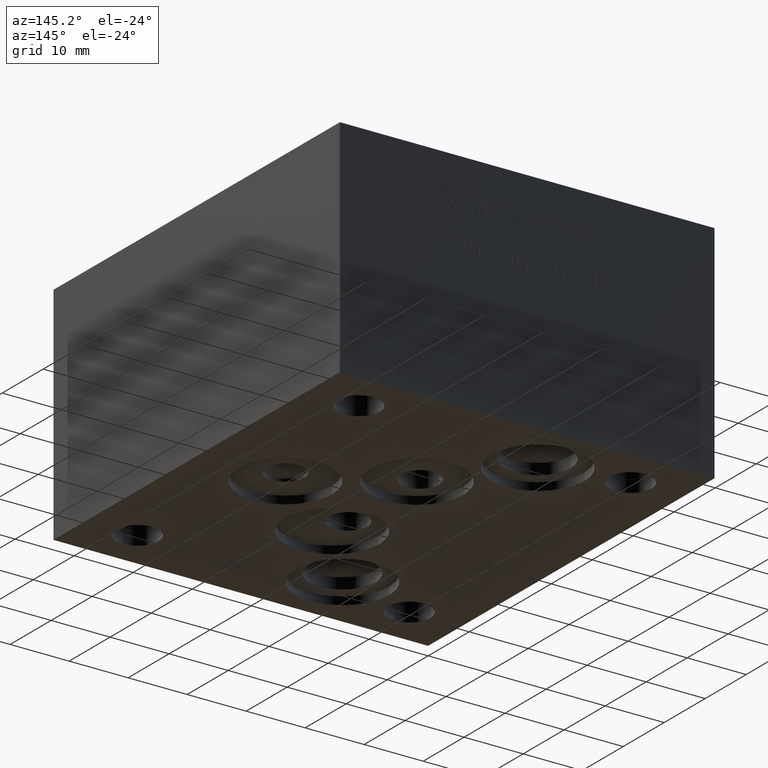
[diagram: clean part render]
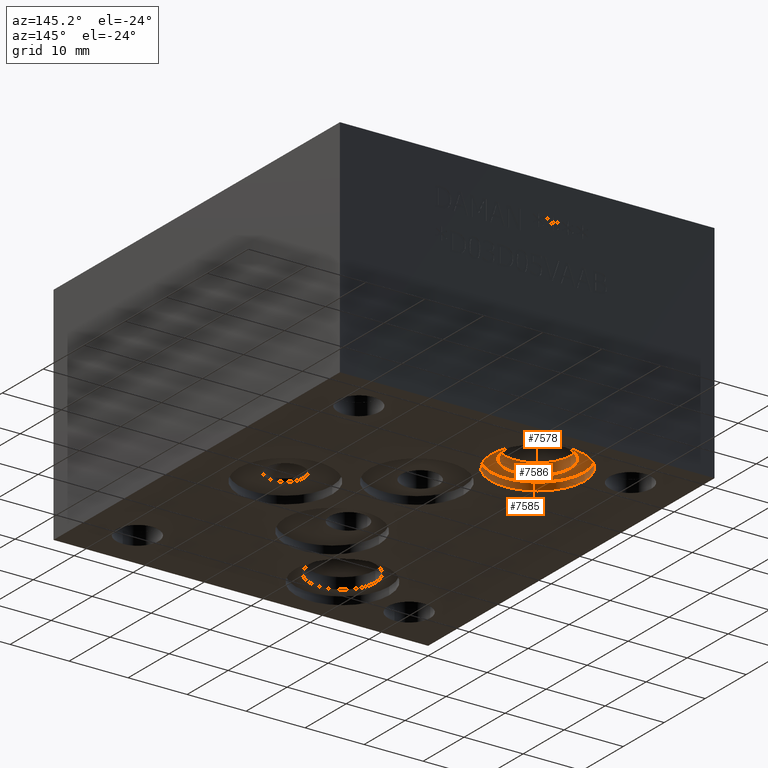
[diagram: same view with one multi-face feature highlighted, each face labeled with its STEP entity id]
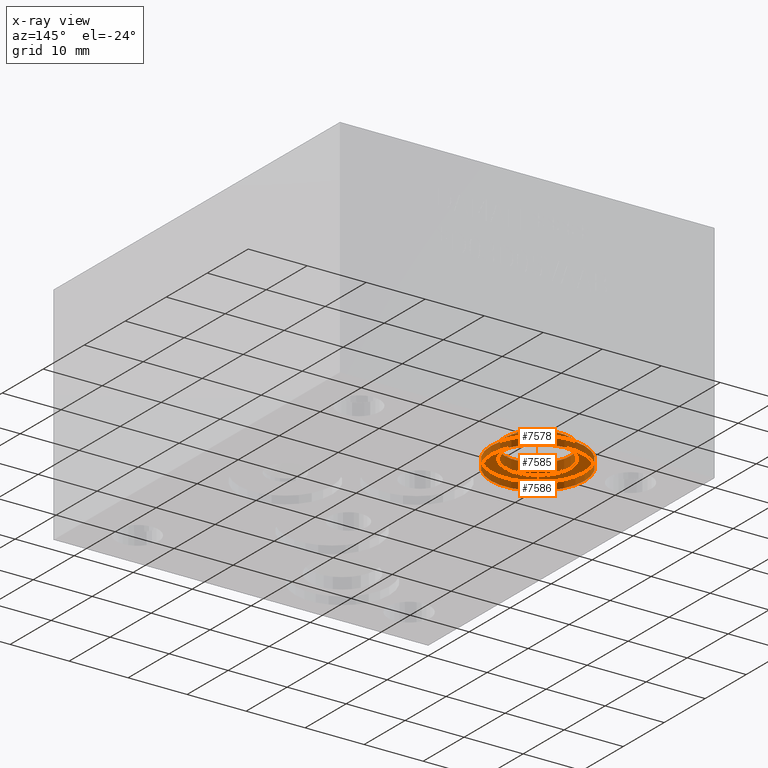
[diagram: x-ray of the same camera — body ghosted, the whole feature saturated]
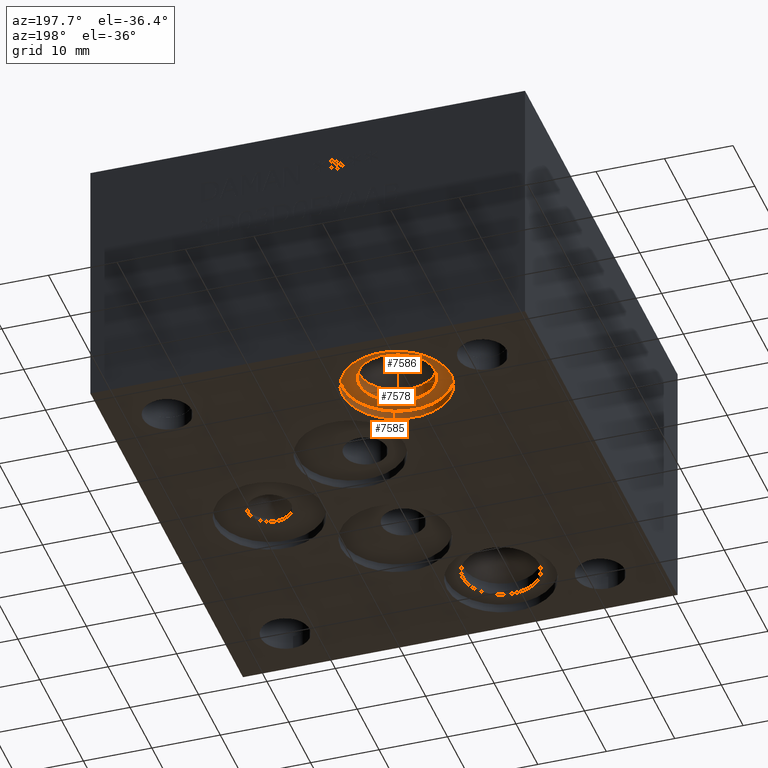
[diagram: same view with one multi-face feature highlighted, each face labeled with its STEP entity id]
A machine part, auxiliary view. The highlighted faces form ONE feature: a stepped (counterbored) hole: 2 coaxial cylindrical walls of radii 5.5626 -> 7.9375 mm joined by 1 annular planar shoulder face(s). The faces share edges in the B-rep.
The next image is the same camera in x-ray: the body ghosted and the whole hole feature saturated, so the bore chain is visible through the body.
A second angle (auxiliary view) of the same feature is appended — it is thin or edge-on in the first view.
Their STEP definitions:
[1] entity #7585 (Cylinder):
#18=CYLINDRICAL_SURFACE('',#7913,7.9375);
#56=CIRCLE('',#7914,7.9375);
#57=CIRCLE('',#7915,7.9375);
#820=FACE_OUTER_BOUND('',#1247,.T.);
#1247=EDGE_LOOP('',(#6434,#6435,#6436,#6437));
#2062=LINE('',#12644,#2833);
#2833=VECTOR('',#9265,7.9375);
#3497=VERTEX_POINT('',#12641);
#3498=VERTEX_POINT('',#12643);
#4493=EDGE_CURVE('',#3497,#3497,#56,.T.);
#4494=EDGE_CURVE('',#3497,#3498,#2062,.T.);
#4495=EDGE_CURVE('',#3498,#3498,#57,.T.);
#6434=ORIENTED_EDGE('',*,*,#4493,.F.);
#6435=ORIENTED_EDGE('',*,*,#4494,.T.);
#6436=ORIENTED_EDGE('',*,*,#4495,.F.);
#6437=ORIENTED_EDGE('',*,*,#4494,.F.);
#7585=ADVANCED_FACE('',(#820),#18,.F.);
#7913=AXIS2_PLACEMENT_3D('',#12640,#9261,#9262);
#7914=AXIS2_PLACEMENT_3D('',#12642,#9263,#9264);
#7915=AXIS2_PLACEMENT_3D('',#12645,#9266,#9267);
#9261=DIRECTION('center_axis',(0.,0.,-1.));
#9262=DIRECTION('ref_axis',(1.,0.,0.));
#9263=DIRECTION('center_axis',(0.,0.,1.));
#9264=DIRECTION('ref_axis',(1.,0.,0.));
#9265=DIRECTION('',(0.,0.,1.));
#9266=DIRECTION('center_axis',(0.,0.,-1.));
#9267=DIRECTION('ref_axis',(1.,0.,0.));
#12640=CARTESIAN_POINT('Origin',(22.2504,58.7502,0.6604));
#12641=CARTESIAN_POINT('',(14.3129,58.7502,0.));
#12642=CARTESIAN_POINT('Origin',(22.2504,58.7502,0.));
#12643=CARTESIAN_POINT('',(14.3129,58.7502,1.3208));
#12644=CARTESIAN_POINT('',(14.3129,58.7502,0.6604));
#12645=CARTESIAN_POINT('Origin',(22.2504,58.7502,1.3208));
[2] entity #7578 (Cylinder):
#14=CYLINDRICAL_SURFACE('',#7898,5.5626);
#47=CIRCLE('',#7897,5.5626);
#48=CIRCLE('',#7899,5.5626);
#813=FACE_OUTER_BOUND('',#1239,.T.);
#1239=EDGE_LOOP('',(#6410,#6411,#6412,#6413));
#2056=LINE('',#12612,#2827);
#2827=VECTOR('',#9229,5.5626);
#3485=VERTEX_POINT('',#12605);
#3487=VERTEX_POINT('',#12610);
#4477=EDGE_CURVE('',#3485,#3485,#47,.T.);
#4479=EDGE_CURVE('',#3487,#3487,#48,.T.);
#4480=EDGE_CURVE('',#3487,#3485,#2056,.T.);
#6410=ORIENTED_EDGE('',*,*,#4479,.F.);
#6411=ORIENTED_EDGE('',*,*,#4480,.T.);
#6412=ORIENTED_EDGE('',*,*,#4477,.F.);
#6413=ORIENTED_EDGE('',*,*,#4480,.F.);
#7578=ADVANCED_FACE('',(#813),#14,.F.);
#7897=AXIS2_PLACEMENT_3D('',#12606,#9222,#9223);
#7898=AXIS2_PLACEMENT_3D('',#12609,#9225,#9226);
#7899=AXIS2_PLACEMENT_3D('',#12611,#9227,#9228);
#9222=DIRECTION('center_axis',(0.,0.,-1.));
#9223=DIRECTION('ref_axis',(1.,0.,0.));
#9225=DIRECTION('center_axis',(0.,0.,-1.));
#9226=DIRECTION('ref_axis',(1.,0.,0.));
#9227=DIRECTION('center_axis',(0.,0.,1.));
#9228=DIRECTION('ref_axis',(1.,0.,0.));
#9229=DIRECTION('',(0.,0.,1.));
#12605=CARTESIAN_POINT('',(16.6878,58.7502,3.21157));
#12606=CARTESIAN_POINT('Origin',(22.2504,58.7502,3.21157));
#12609=CARTESIAN_POINT('Origin',(22.2504,58.7502,1.605785));
#12610=CARTESIAN_POINT('',(16.6878,58.7502,1.3208));
#12611=CARTESIAN_POINT('Origin',(22.2504,58.7502,1.3208));
#12612=CARTESIAN_POINT('',(16.6878,58.7502,1.605785));
[3] entity #7586 (Plane):
#48=CIRCLE('',#7899,5.5626);
#57=CIRCLE('',#7915,7.9375);
#160=FACE_BOUND('',#1249,.T.);
#821=FACE_OUTER_BOUND('',#1248,.T.);
#1248=EDGE_LOOP('',(#6438));
#1249=EDGE_LOOP('',(#6439));
#3487=VERTEX_POINT('',#12610);
#3498=VERTEX_POINT('',#12643);
#4479=EDGE_CURVE('',#3487,#3487,#48,.T.);
#4495=EDGE_CURVE('',#3498,#3498,#57,.T.);
#6438=ORIENTED_EDGE('',*,*,#4495,.T.);
#6439=ORIENTED_EDGE('',*,*,#4479,.T.);
#6909=PLANE('',#7916);
#7586=ADVANCED_FACE('',(#821,#160),#6909,.T.);
#7899=AXIS2_PLACEMENT_3D('',#12611,#9227,#9228);
#7915=AXIS2_PLACEMENT_3D('',#12645,#9266,#9267);
#7916=AXIS2_PLACEMENT_3D('',#12646,#9268,#9269);
#9227=DIRECTION('center_axis',(0.,0.,1.));
#9228=DIRECTION('ref_axis',(1.,0.,0.));
#9266=DIRECTION('center_axis',(0.,0.,-1.));
#9267=DIRECTION('ref_axis',(1.,0.,0.));
#9268=DIRECTION('center_axis',(0.,0.,-1.));
#9269=DIRECTION('ref_axis',(1.,0.,0.));
#12610=CARTESIAN_POINT('',(16.6878,58.7502,1.3208));
#12611=CARTESIAN_POINT('Origin',(22.2504,58.7502,1.3208));
#12643=CARTESIAN_POINT('',(14.3129,58.7502,1.3208));
#12645=CARTESIAN_POINT('Origin',(22.2504,58.7502,1.3208));
#12646=CARTESIAN_POINT('Origin',(22.2504,58.7502,1.3208));